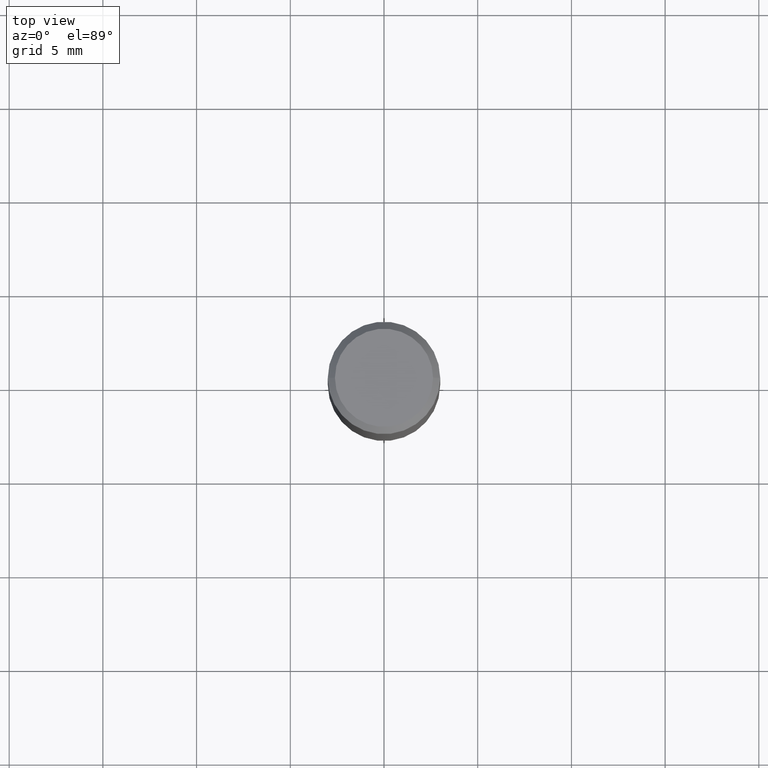
[diagram: clean part render]
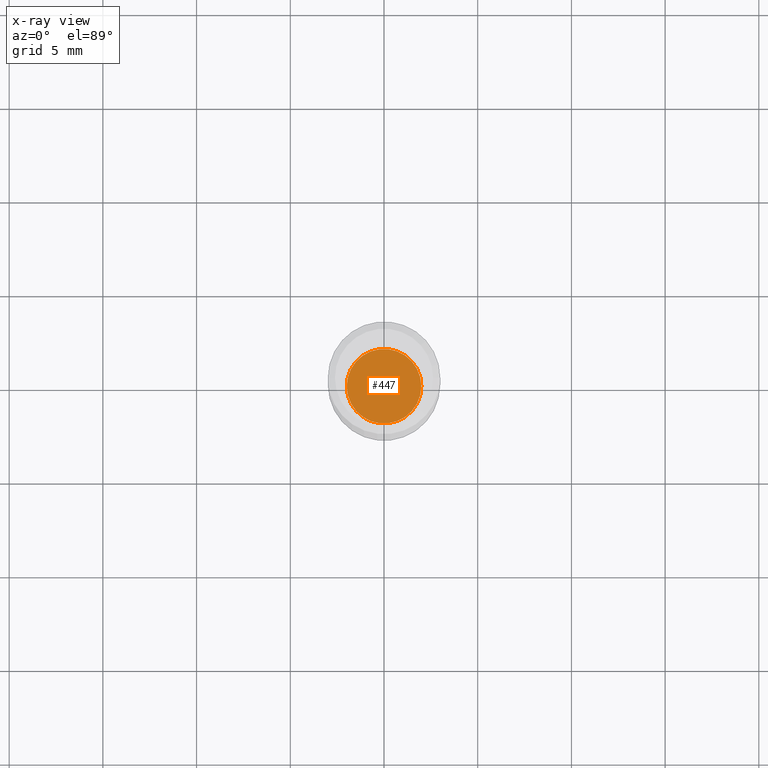
[diagram: x-ray — body ghosted, one internal face saturated and labeled with its STEP entity id]
A machine part, top view, then the same camera in x-ray: the body is ghosted and one INTERNAL B-rep face — a face not visible from any outside direction — is saturated and labeled: STEP entity #447.
In plain terms, the highlighted planar face has unit normal (-0, 0, 1).
Its self-contained STEP definition (entity closure, byte-faithful):
#21 = DIRECTION ( 'NONE',  ( -2.445468806185136597E-29, 3.491481338843145583E-15, 1.000000000000000000 ) ) ;
#22 = DIRECTION ( 'NONE',  ( -2.445468806185136597E-29, 3.491481338843145583E-15, 1.000000000000000000 ) ) ;
#33 = DIRECTION ( 'NONE',  ( -2.438088387897960049E-29, 3.491481338843145188E-15, 1.000000000000000000 ) ) ;
#35 = EDGE_CURVE ( 'NONE', #169, #45, #167, .T. ) ;
#45 = VERTEX_POINT ( 'NONE', #251 ) ;
#48 = AXIS2_PLACEMENT_3D ( 'NONE', #130, #22, #277 ) ;
#56 = CARTESIAN_POINT ( 'NONE',  ( 2.512963745235846851E-29, -3.587846223795217707E-15, -1.027600000000000291 ) ) ;
#61 = CARTESIAN_POINT ( 'NONE',  ( 0.07825000000000000011, -4.134263053324168046E-15, -1.027600000000000291 ) ) ;
#111 = AXIS2_PLACEMENT_3D ( 'NONE', #210, #33, #177 ) ;
#130 = CARTESIAN_POINT ( 'NONE',  ( 2.512963745235846851E-29, -3.587846223795217707E-15, -1.027600000000000291 ) ) ;
#167 = CIRCLE ( 'NONE', #323, 0.07825000000000000011 ) ;
#169 = VERTEX_POINT ( 'NONE', #61 ) ;
#177 = DIRECTION ( 'NONE',  ( 1.000000000000000000, -6.982962677686265922E-15, 4.876176775795935793E-29 ) ) ;
#179 = ORIENTED_EDGE ( 'NONE', *, *, #35, .F. ) ;
#208 = PLANE ( 'NONE',  #111 ) ;
#210 = CARTESIAN_POINT ( 'NONE',  ( 2.512963745235846851E-29, -3.587846223795217707E-15, -1.027600000000000291 ) ) ;
#221 = EDGE_CURVE ( 'NONE', #45, #169, #436, .T. ) ;
#240 = DIRECTION ( 'NONE',  ( 1.000000000000000000, -6.982962677686267499E-15, 0.000000000000000000 ) ) ;
#251 = CARTESIAN_POINT ( 'NONE',  ( -0.07825000000000000011, -3.029197305888827420E-15, -1.027600000000000291 ) ) ;
#277 = DIRECTION ( 'NONE',  ( 1.000000000000000000, -6.982962677686267499E-15, 0.000000000000000000 ) ) ;
#323 = AXIS2_PLACEMENT_3D ( 'NONE', #56, #21, #240 ) ;
#374 = EDGE_LOOP ( 'NONE', ( #179, #409 ) ) ;
#398 = FACE_OUTER_BOUND ( 'NONE', #374, .T. ) ;
#409 = ORIENTED_EDGE ( 'NONE', *, *, #221, .F. ) ;
#436 = CIRCLE ( 'NONE', #48, 0.07825000000000000011 ) ;
#447 = ADVANCED_FACE ( 'NONE', ( #398 ), #208, .F. ) ;